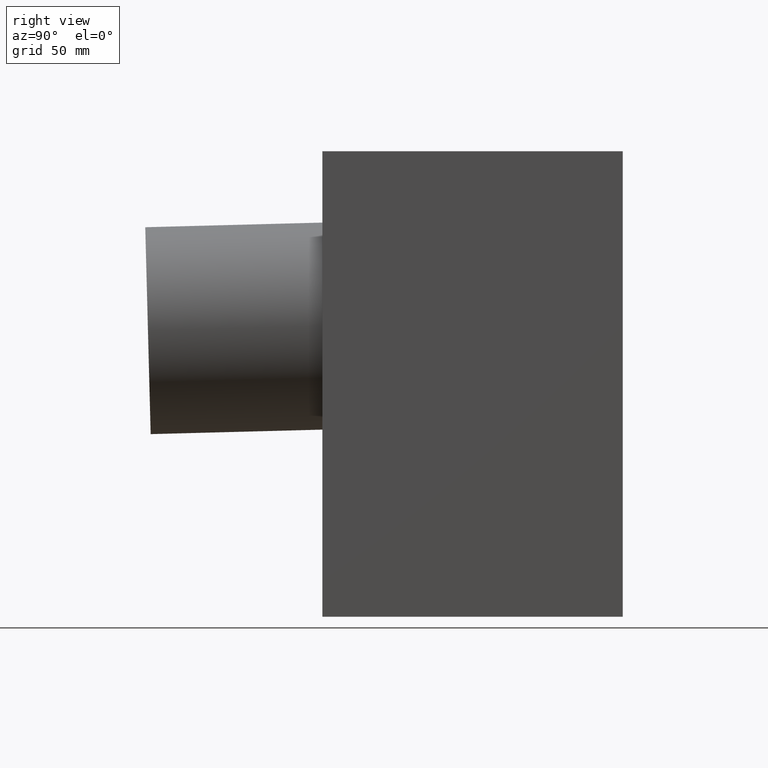
[diagram: clean part render]
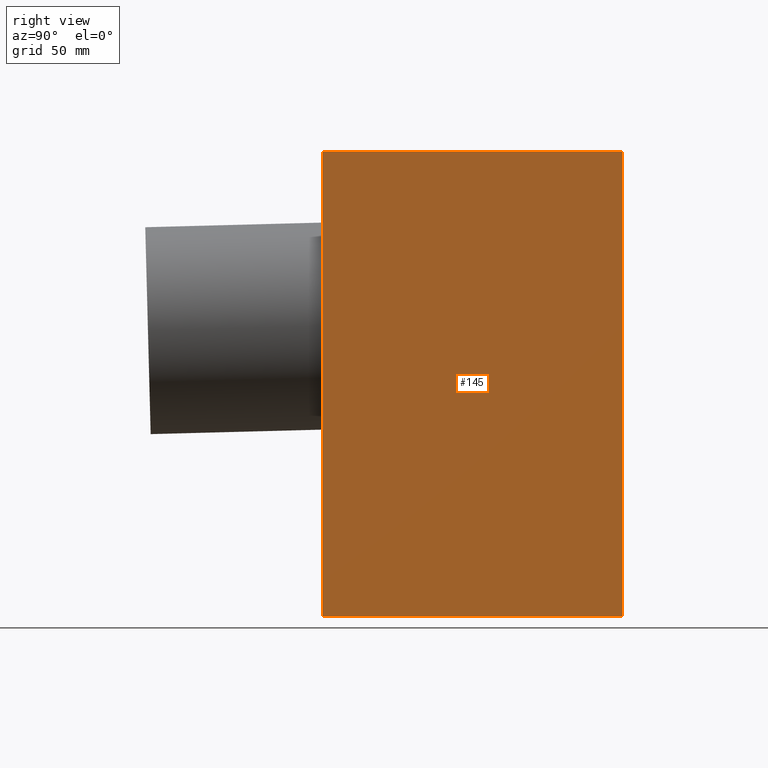
[diagram: same view with one face highlighted and labeled with its STEP entity id]
A machine part, right view. The second image highlights one B-rep face of the part: STEP entity #145.
In plain terms, the highlighted planar face has unit normal (1, 0, 0).
Its self-contained STEP definition (entity closure, byte-faithful):
#23=FACE_OUTER_BOUND('',#33,.T.);
#33=EDGE_LOOP('',(#101,#102,#103,#104));
#43=LINE('',#238,#57);
#44=LINE('',#240,#58);
#45=LINE('',#242,#59);
#46=LINE('',#243,#60);
#57=VECTOR('',#194,304.8);
#58=VECTOR('',#195,304.8);
#59=VECTOR('',#196,304.8);
#60=VECTOR('',#197,304.8);
#71=VERTEX_POINT('',#236);
#72=VERTEX_POINT('',#237);
#73=VERTEX_POINT('',#239);
#74=VERTEX_POINT('',#241);
#83=EDGE_CURVE('',#71,#72,#43,.T.);
#84=EDGE_CURVE('',#73,#71,#44,.T.);
#85=EDGE_CURVE('',#74,#73,#45,.T.);
#86=EDGE_CURVE('',#72,#74,#46,.T.);
#101=ORIENTED_EDGE('',*,*,#83,.F.);
#102=ORIENTED_EDGE('',*,*,#84,.F.);
#103=ORIENTED_EDGE('',*,*,#85,.F.);
#104=ORIENTED_EDGE('',*,*,#86,.F.);
#137=PLANE('',#176);
#145=ADVANCED_FACE('',(#23),#137,.T.);
#176=AXIS2_PLACEMENT_3D('',#235,#192,#193);
#192=DIRECTION('center_axis',(1.,6.55806158732067E-17,0.));
#193=DIRECTION('ref_axis',(0.,0.,-1.));
#194=DIRECTION('',(0.,1.,0.));
#195=DIRECTION('',(0.,0.,1.));
#196=DIRECTION('',(0.,-1.,0.));
#197=DIRECTION('',(0.,0.,-1.));
#235=CARTESIAN_POINT('Origin',(64.5000000000001,-64.5000000000002,0.));
#236=CARTESIAN_POINT('',(64.5000000000001,-64.5000000000002,0.));
#237=CARTESIAN_POINT('',(64.5000000000001,64.5000000000002,0.));
#238=CARTESIAN_POINT('',(64.5000000000001,-64.5000000000002,0.));
#239=CARTESIAN_POINT('',(64.5000000000001,-64.5000000000002,-200.));
#240=CARTESIAN_POINT('',(64.5000000000001,-64.5000000000002,-200.));
#241=CARTESIAN_POINT('',(64.5000000000001,64.5000000000002,-200.));
#242=CARTESIAN_POINT('',(64.5000000000001,64.5000000000002,-200.));
#243=CARTESIAN_POINT('',(64.5000000000001,64.5000000000002,0.));